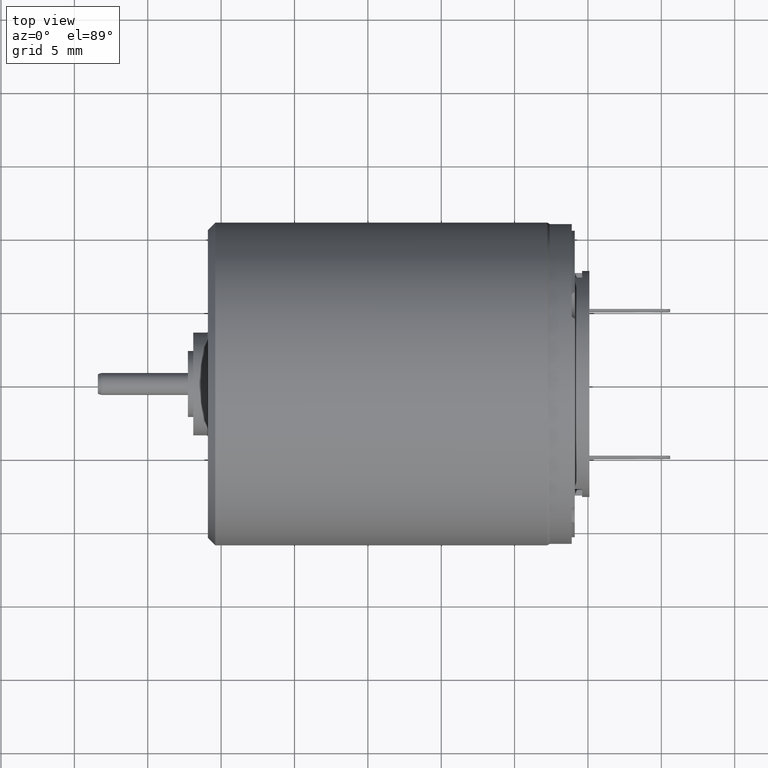
[diagram: clean part render]
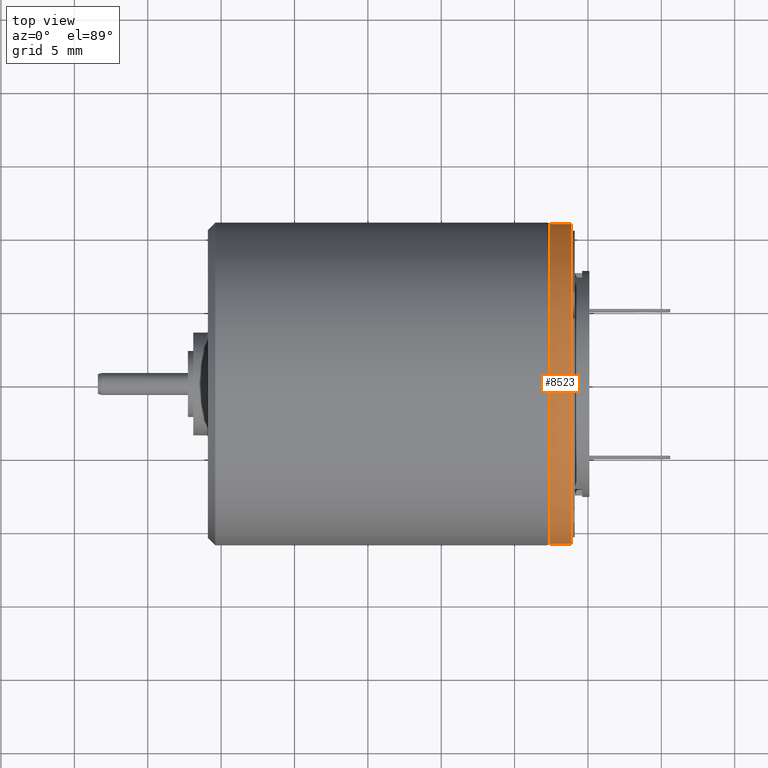
[diagram: same view with one face highlighted and labeled with its STEP entity id]
A machine part, top view. The second image highlights one B-rep face of the part: STEP entity #8523.
In plain terms, the highlighted cylindrical surface (partial cylindrical patch) has radius 10.9 mm, axis along (-1, 0, 0).
Its self-contained STEP definition (entity closure, byte-faithful):
#2392=CARTESIAN_POINT('',(8.9E0,1.115653234024E-14,0.E0));
#2393=DIRECTION('',(-1.E0,0.E0,0.E0));
#2394=DIRECTION('',(0.E0,-1.E0,0.E0));
#2395=AXIS2_PLACEMENT_3D('',#2392,#2393,#2394);
#2407=DIRECTION('',(1.E0,2.593480985524E-13,0.E0));
#2408=VECTOR('',#2407,1.5E0);
#2409=CARTESIAN_POINT('',(7.4E0,1.09E1,0.E0));
#2410=LINE('',#2409,#2408);
#2411=DIRECTION('',(-1.E0,2.178997722997E-13,0.E0));
#2412=VECTOR('',#2411,1.5E0);
#2413=CARTESIAN_POINT('',(8.9E0,-1.09E1,0.E0));
#2414=LINE('',#2413,#2412);
#2415=CARTESIAN_POINT('',(7.4E0,0.E0,0.E0));
#2416=DIRECTION('',(1.E0,0.E0,0.E0));
#2417=DIRECTION('',(0.E0,1.E0,0.E0));
#2418=AXIS2_PLACEMENT_3D('',#2415,#2416,#2417);
#4425=CARTESIAN_POINT('',(8.9E0,1.09E1,0.E0));
#4426=CARTESIAN_POINT('',(8.9E0,-1.09E1,0.E0));
#4427=VERTEX_POINT('',#4425);
#4428=VERTEX_POINT('',#4426);
#4429=CARTESIAN_POINT('',(7.4E0,1.09E1,0.E0));
#4430=VERTEX_POINT('',#4429);
#4431=CARTESIAN_POINT('',(7.4E0,-1.09E1,0.E0));
#4432=VERTEX_POINT('',#4431);
#8511=CARTESIAN_POINT('',(8.948501975218E0,1.115059256137E-14,0.E0));
#8512=DIRECTION('',(-1.E0,0.E0,0.E0));
#8513=DIRECTION('',(0.E0,1.E0,0.E0));
#8514=AXIS2_PLACEMENT_3D('',#8511,#8512,#8513);
#8515=CYLINDRICAL_SURFACE('',#8514,1.09E1);
#8516=ORIENTED_EDGE('',*,*,#8501,.T.);
#8517=ORIENTED_EDGE('',*,*,#8487,.F.);
#8518=ORIENTED_EDGE('',*,*,#8505,.T.);
#8520=ORIENTED_EDGE('',*,*,#8519,.F.);
#8521=EDGE_LOOP('',(#8516,#8517,#8518,#8520));
#8522=FACE_OUTER_BOUND('',#8521,.F.);
#8523=ADVANCED_FACE('',(#8522),#8515,.T.);
#2396=CIRCLE('',#2395,1.09E1);
#2419=CIRCLE('',#2418,1.09E1);
#8487=EDGE_CURVE('',#4428,#4427,#2396,.T.);
#8501=EDGE_CURVE('',#4430,#4427,#2410,.T.);
#8505=EDGE_CURVE('',#4428,#4432,#2414,.T.);
#8519=EDGE_CURVE('',#4430,#4432,#2419,.T.);